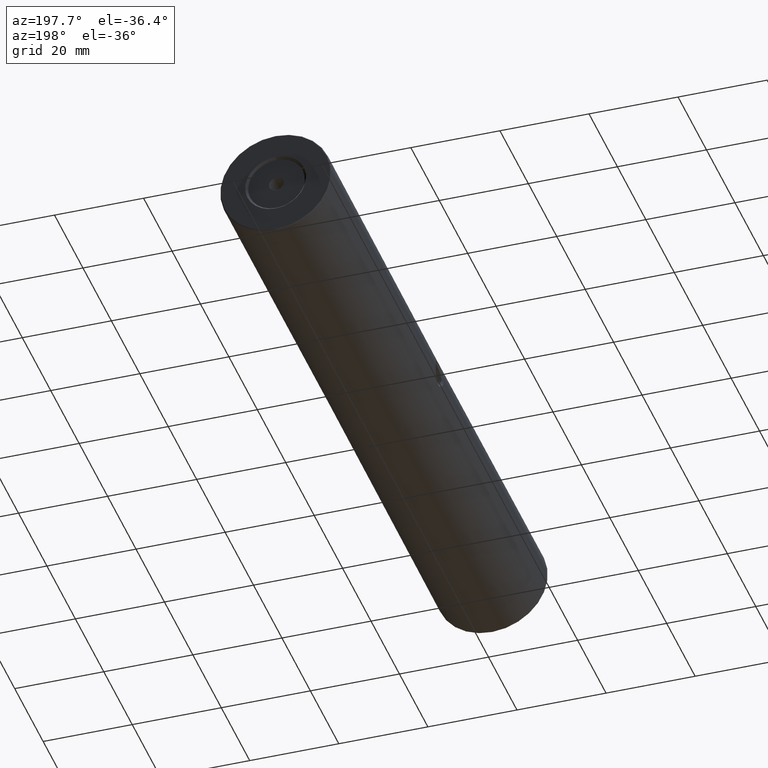
[diagram: clean part render]
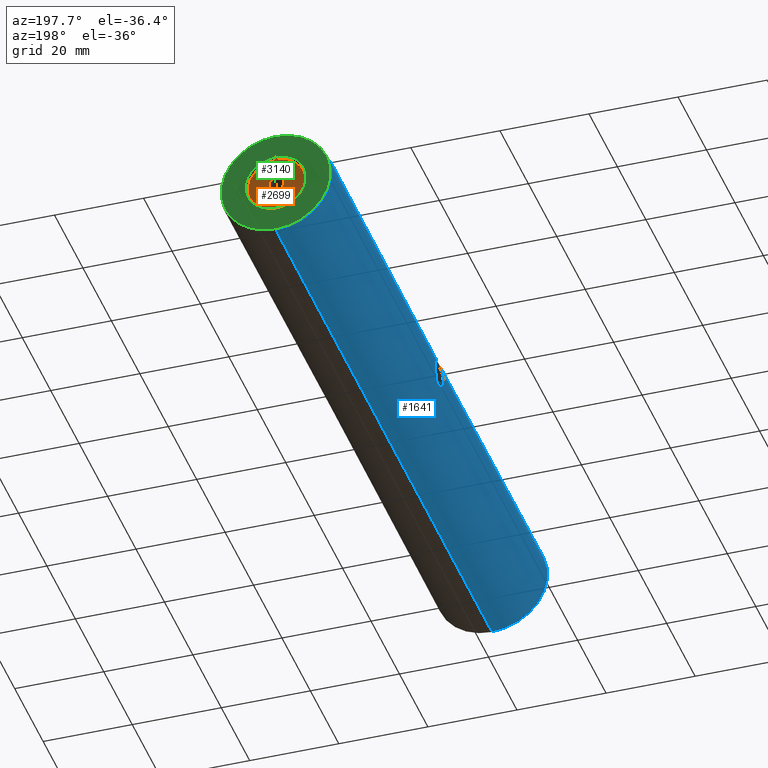
[diagram: same view with three faces highlighted in distinct colors, each labeled with its STEP entity id]
A machine part, auxiliary view with three faces highlighted in distinct colors.
Their STEP definitions:

[orange] entity #2699 — the highlighted planar face has unit normal (0, 1, 0).
#4 = FACE_OUTER_BOUND ( 'NONE', #1344, .T. ) ;
#136 = ORIENTED_EDGE ( 'NONE', *, *, #1799, .F. ) ;
#184 = CARTESIAN_POINT ( 'NONE',  ( -22.50520183104453409, 77.09825218476937891, 51.64999999999999858 ) ) ;
#223 = VERTEX_POINT ( 'NONE', #780 ) ;
#292 = CARTESIAN_POINT ( 'NONE',  ( -22.50520183104453409, 77.09825218476937891, 50.00000000000000000 ) ) ;
#367 = DIRECTION ( 'NONE',  ( 0.0000000000000000000, 1.000000000000000000, 0.0000000000000000000 ) ) ;
#416 = DIRECTION ( 'NONE',  ( 0.0000000000000000000, 0.0000000000000000000, 1.000000000000000000 ) ) ;
#460 = PLANE ( 'NONE',  #1786 ) ;
#652 = EDGE_LOOP ( 'NONE', ( #1875, #136 ) ) ;
#655 = EDGE_CURVE ( 'NONE', #2323, #3104, #1113, .T. ) ;
#754 = DIRECTION ( 'NONE',  ( 0.0000000000000000000, 1.000000000000000000, 0.0000000000000000000 ) ) ;
#780 = CARTESIAN_POINT ( 'NONE',  ( -22.50520183104453409, 77.09825218476937891, 43.64999999999999858 ) ) ;
#938 = ORIENTED_EDGE ( 'NONE', *, *, #1645, .T. ) ;
#1004 = CIRCLE ( 'NONE', #3406, 1.649999999999998579 ) ;
#1113 = CIRCLE ( 'NONE', #3290, 1.649999999999998579 ) ;
#1344 = EDGE_LOOP ( 'NONE', ( #2871, #938 ) ) ;
#1353 = CARTESIAN_POINT ( 'NONE',  ( -22.50520183104453409, 77.09825218476937891, 50.00000000000000000 ) ) ;
#1443 = DIRECTION ( 'NONE',  ( 0.0000000000000000000, 1.000000000000000000, 0.0000000000000000000 ) ) ;
#1510 = AXIS2_PLACEMENT_3D ( 'NONE', #1353, #1588, #3193 ) ;
#1588 = DIRECTION ( 'NONE',  ( 0.0000000000000000000, 1.000000000000000000, 0.0000000000000000000 ) ) ;
#1645 = EDGE_CURVE ( 'NONE', #223, #2617, #1937, .T. ) ;
#1705 = CARTESIAN_POINT ( 'NONE',  ( -22.50520183104453409, 77.09825218476937891, 50.00000000000000000 ) ) ;
#1760 = CARTESIAN_POINT ( 'NONE',  ( -22.50520183104453409, 77.09825218476937891, 50.00000000000000000 ) ) ;
#1786 = AXIS2_PLACEMENT_3D ( 'NONE', #1836, #754, #2923 ) ;
#1799 = EDGE_CURVE ( 'NONE', #3104, #2323, #1004, .T. ) ;
#1836 = CARTESIAN_POINT ( 'NONE',  ( -22.50520183104453409, 77.09825218476937891, 50.00000000000000000 ) ) ;
#1875 = ORIENTED_EDGE ( 'NONE', *, *, #655, .F. ) ;
#1937 = CIRCLE ( 'NONE', #1946, 6.350000000000001421 ) ;
#1946 = AXIS2_PLACEMENT_3D ( 'NONE', #292, #1443, #2787 ) ;
#1967 = DIRECTION ( 'NONE',  ( 0.0000000000000000000, 1.000000000000000000, 0.0000000000000000000 ) ) ;
#2086 = CARTESIAN_POINT ( 'NONE',  ( -22.50520183104453409, 77.09825218476937891, 56.35000000000000142 ) ) ;
#2227 = CIRCLE ( 'NONE', #1510, 6.350000000000001421 ) ;
#2305 = DIRECTION ( 'NONE',  ( 0.0000000000000000000, 0.0000000000000000000, 1.000000000000000000 ) ) ;
#2323 = VERTEX_POINT ( 'NONE', #184 ) ;
#2386 = CARTESIAN_POINT ( 'NONE',  ( -22.50520183104453409, 77.09825218476937891, 48.35000000000000142 ) ) ;
#2518 = EDGE_CURVE ( 'NONE', #2617, #223, #2227, .T. ) ;
#2617 = VERTEX_POINT ( 'NONE', #2086 ) ;
#2699 = ADVANCED_FACE ( 'NONE', ( #2859, #4 ), #460, .T. ) ;
#2787 = DIRECTION ( 'NONE',  ( 0.0000000000000000000, 0.0000000000000000000, 1.000000000000000000 ) ) ;
#2859 = FACE_BOUND ( 'NONE', #652, .T. ) ;
#2871 = ORIENTED_EDGE ( 'NONE', *, *, #2518, .T. ) ;
#2923 = DIRECTION ( 'NONE',  ( 0.0000000000000000000, -0.0000000000000000000, 1.000000000000000000 ) ) ;
#3104 = VERTEX_POINT ( 'NONE', #2386 ) ;
#3193 = DIRECTION ( 'NONE',  ( 0.0000000000000000000, 0.0000000000000000000, 1.000000000000000000 ) ) ;
#3290 = AXIS2_PLACEMENT_3D ( 'NONE', #1705, #1967, #416 ) ;
#3406 = AXIS2_PLACEMENT_3D ( 'NONE', #1760, #367, #2305 ) ;

[blue] entity #1641 — the highlighted cylindrical surface (partial cylindrical patch) has radius 12.5 mm, axis along (-0, -1, -0).
#44 = EDGE_CURVE ( 'NONE', #1761, #3143, #614, .T. ) ;
#85 = CARTESIAN_POINT ( 'NONE',  ( -22.50520183104453409, -74.55174781523061256, 62.50000000000000000 ) ) ;
#97 = CARTESIAN_POINT ( 'NONE',  ( -34.98808031034839416, -1.341176413164854031, 50.66066995131222228 ) ) ;
#159 = CARTESIAN_POINT ( 'NONE',  ( -34.72889004346957620, 0.1521183056254577226, 47.38523661628924799 ) ) ;
#177 = CARTESIAN_POINT ( 'NONE',  ( -34.66752058121687696, 1.766213776329817575, 52.88584409472473880 ) ) ;
#189 = VERTEX_POINT ( 'NONE', #2931 ) ;
#234 = DIRECTION ( 'NONE',  ( -0.0000000000000000000, -1.000000000000000000, -0.0000000000000000000 ) ) ;
#321 = CYLINDRICAL_SURFACE ( 'NONE', #3452, 12.49999999999999645 ) ;
#371 = AXIS2_PLACEMENT_3D ( 'NONE', #2384, #234, #1306 ) ;
#393 = CARTESIAN_POINT ( 'NONE',  ( -34.74847621066871284, 2.810539836582059525, 47.47735429480086111 ) ) ;
#406 = EDGE_CURVE ( 'NONE', #189, #794, #726, .T. ) ;
#434 = CARTESIAN_POINT ( 'NONE',  ( -34.67081540850627874, 1.856390161518441939, 52.87196965016499917 ) ) ;
#435 = CARTESIAN_POINT ( 'NONE',  ( -34.66651604186940006, 1.768063399945826397, 47.10968654203514916 ) ) ;
#450 = AXIS2_PLACEMENT_3D ( 'NONE', #875, #3012, #860 ) ;
#454 = CARTESIAN_POINT ( 'NONE',  ( -34.91000489704502741, 3.784083020754036575, 51.54180631073815277 ) ) ;
#472 = CARTESIAN_POINT ( 'NONE',  ( -34.66652474597411526, 1.028189448993798827, 52.89027716195607809 ) ) ;
#614 = B_SPLINE_CURVE_WITH_KNOTS ( 'NONE', 3,
 ( #733, #958, #3370, #2311, #2852, #1012, #454, #1507, #2027, #750, #2572, #3091, #1766, #1802, #976, #434, #177, #1524, #2590, #1266, #472, #2607, #1281, #2346, #3405, #2080, #1468, #2738, #2213, #1160, #3052, #2460, #1128, #3276, #97, #1144, #3335, #1726 ),
 .UNSPECIFIED., .F., .F.,
 ( 4, 2, 2, 2, 2, 2, 2, 2, 2, 2, 2, 2, 2, 2, 2, 2, 2, 2, 4 ),
 ( 0.5000000000000000000, 0.5624999999999977796, 0.5781249999999974465, 0.5937499999999971134, 0.6249999999999973355, 0.6562499999999976685, 0.6874999999999980016, 0.7187499999999983347, 0.7343749999999984457, 0.7499999999999986677, 0.7812499999999988898, 0.8124999999999991118, 0.8437499999999993339, 0.8749999999999996669, 0.9062500000000000000, 0.9375000000000002220, 0.9531249999999997780, 0.9687499999999995559, 1.000000000000000000 ),
 .UNSPECIFIED. ) ;
#635 = CARTESIAN_POINT ( 'NONE',  ( -34.98371482565009671, 4.119216514467695767, 49.24348063906649031 ) ) ;
#656 = CARTESIAN_POINT ( 'NONE',  ( -34.81216474023065643, -0.4587072315104847031, 47.80748851897893559 ) ) ;
#678 = CARTESIAN_POINT ( 'NONE',  ( -35.00520147448046515, 4.209585013874988846, 50.00298564924415956 ) ) ;
#695 = CARTESIAN_POINT ( 'NONE',  ( -34.74815230533062760, -0.01157353960111017280, 47.47574332331905822 ) ) ;
#712 = VERTEX_POINT ( 'NONE', #1489 ) ;
#726 = CIRCLE ( 'NONE', #450, 12.49999999999999645 ) ;
#732 = EDGE_CURVE ( 'NONE', #3143, #1761, #1030, .T. ) ;
#733 = CARTESIAN_POINT ( 'NONE',  ( -35.00520147448046515, 4.209585013874988846, 50.00298564924415956 ) ) ;
#750 = CARTESIAN_POINT ( 'NONE',  ( -34.81205133254193385, 3.254567286170596763, 52.19320050888281770 ) ) ;
#794 = VERTEX_POINT ( 'NONE', #85 ) ;
#860 = DIRECTION ( 'NONE',  ( 0.0000000000000000000, 0.0000000000000000000, 1.000000000000000000 ) ) ;
#875 = CARTESIAN_POINT ( 'NONE',  ( -22.50520183104453409, -74.55174781523061256, 50.00000000000000000 ) ) ;
#898 = CARTESIAN_POINT ( 'NONE',  ( -34.87974277251103672, 3.646729404079716019, 48.21237859076774157 ) ) ;
#919 = CARTESIAN_POINT ( 'NONE',  ( -34.81219287684744756, 3.255432286787748986, 47.80758469896298379 ) ) ;
#958 = CARTESIAN_POINT ( 'NONE',  ( -35.00511057740322940, 4.209214405500884659, 50.38354389311076176 ) ) ;
#976 = CARTESIAN_POINT ( 'NONE',  ( -34.68386991630579530, 2.126930833239301322, 52.81629139461828970 ) ) ;
#1012 = CARTESIAN_POINT ( 'NONE',  ( -34.92002400583781707, 3.832124608341702210, 51.45923812917446583 ) ) ;
#1028 = EDGE_CURVE ( 'NONE', #712, #794, #1561, .T. ) ;
#1030 = B_SPLINE_CURVE_WITH_KNOTS ( 'NONE', 3,
 ( #1987, #3053, #3092, #2554, #1767, #2294, #2772, #656, #1728, #695, #159, #2833, #2028, #1448, #1186, #2794, #435, #1162, #3295, #3316, #393, #2232, #919, #898, #3074, #3034, #635, #2511, #1469, #678 ),
 .UNSPECIFIED., .F., .F.,
 ( 4, 2, 2, 2, 2, 2, 2, 2, 2, 2, 2, 2, 2, 2, 4 ),
 ( 0.0000000000000000000, 0.06249999999999991673, 0.09374999999999981959, 0.1249999999999997086, 0.1562499999999996114, 0.1874999999999995004, 0.2187499999999993894, 0.2499999999999992506, 0.2812499999999991118, 0.3124999999999990563, 0.3437499999999989453, 0.3749999999999988343, 0.4374999999999994449, 0.4687499999999997224, 0.5000000000000000000 ),
 .UNSPECIFIED. ) ;
#1040 = ORIENTED_EDGE ( 'NONE', *, *, #2805, .T. ) ;
#1051 = CARTESIAN_POINT ( 'NONE',  ( -22.50520183104453409, 77.59825218476937891, 62.50000000000000000 ) ) ;
#1128 = CARTESIAN_POINT ( 'NONE',  ( -34.97029888078463955, -1.264562310703709835, 50.93798354384916394 ) ) ;
#1144 = CARTESIAN_POINT ( 'NONE',  ( -35.00080834475433988, -1.395005945047980145, 50.38049639823343284 ) ) ;
#1160 = CARTESIAN_POINT ( 'NONE',  ( -34.92091958336120427, -1.041568019864894445, 51.45788940182449522 ) ) ;
#1162 = CARTESIAN_POINT ( 'NONE',  ( -34.68404829436484249, 2.129844607503969200, 47.18447624009774444 ) ) ;
#1186 = CARTESIAN_POINT ( 'NONE',  ( -34.66193446152057334, 1.214990703615520973, 47.09073003121876866 ) ) ;
#1266 = CARTESIAN_POINT ( 'NONE',  ( -34.66195746431354507, 1.211812476573435715, 52.90917384922281030 ) ) ;
#1281 = CARTESIAN_POINT ( 'NONE',  ( -34.69719134326830101, 0.4871785544746704555, 52.75879586369703134 ) ) ;
#1287 = EDGE_CURVE ( 'NONE', #712, #1295, #1506, .T. ) ;
#1295 = VERTEX_POINT ( 'NONE', #2706 ) ;
#1306 = DIRECTION ( 'NONE',  ( 0.0000000000000000000, 0.0000000000000000000, 1.000000000000000000 ) ) ;
#1448 = CARTESIAN_POINT ( 'NONE',  ( -34.66645419303031161, 1.029721679340446894, 47.10942330579267434 ) ) ;
#1452 = VECTOR ( 'NONE', #2664, 1000.000000000000000 ) ;
#1468 = CARTESIAN_POINT ( 'NONE',  ( -34.81267991287084840, -0.4618486554977868086, 52.18960616404260122 ) ) ;
#1469 = CARTESIAN_POINT ( 'NONE',  ( -35.00524692301908658, 4.209770318062036054, 49.81270652731087267 ) ) ;
#1489 = CARTESIAN_POINT ( 'NONE',  ( -22.50520183104453409, 77.34825218476937891, 62.50000000000000000 ) ) ;
#1506 = CIRCLE ( 'NONE', #371, 12.49999999999999645 ) ;
#1507 = CARTESIAN_POINT ( 'NONE',  ( -34.87912024511822295, 3.630988285928343107, 51.77802314557394681 ) ) ;
#1524 = CARTESIAN_POINT ( 'NONE',  ( -34.66304078550320611, 1.581811714280294767, 52.90465927043069172 ) ) ;
#1561 = LINE ( 'NONE', #1051, #1452 ) ;
#1592 = LINE ( 'NONE', #2628, #3123 ) ;
#1641 = ADVANCED_FACE ( 'NONE', ( #1652, #2144 ), #321, .T. ) ;
#1652 = FACE_OUTER_BOUND ( 'NONE', #2389, .T. ) ;
#1726 = CARTESIAN_POINT ( 'NONE',  ( -35.00520183104453764, -1.413082124769271530, 50.00000000000000000 ) ) ;
#1728 = CARTESIAN_POINT ( 'NONE',  ( -34.79001590680041289, -0.3182597613147392646, 47.68806332056860242 ) ) ;
#1761 = VERTEX_POINT ( 'NONE', #2022 ) ;
#1766 = CARTESIAN_POINT ( 'NONE',  ( -34.72905683929546683, 2.646135917268398696, 52.61400507397642201 ) ) ;
#1767 = CARTESIAN_POINT ( 'NONE',  ( -34.92056304548296453, -1.039858968404231865, 48.53915210866000507 ) ) ;
#1802 = CARTESIAN_POINT ( 'NONE',  ( -34.69672515563068060, 2.303875218729430241, 52.76087174921038780 ) ) ;
#1839 = CARTESIAN_POINT ( 'NONE',  ( -35.00520183104453764, -1.413082124769271530, 50.00000000000000000 ) ) ;
#1878 = DIRECTION ( 'NONE',  ( -0.0000000000000000000, -1.000000000000000000, -0.0000000000000000000 ) ) ;
#1987 = CARTESIAN_POINT ( 'NONE',  ( -35.00520183104453764, -1.413082124769271530, 50.00000000000000000 ) ) ;
#2022 = CARTESIAN_POINT ( 'NONE',  ( -35.00520147448046515, 4.209585013874988846, 50.00298564924415956 ) ) ;
#2027 = CARTESIAN_POINT ( 'NONE',  ( -34.85705643049905689, 3.515358686858431891, 51.92363226179138280 ) ) ;
#2028 = CARTESIAN_POINT ( 'NONE',  ( -34.68408990658787872, 0.6657967389231507216, 47.18465315096210588 ) ) ;
#2045 = ORIENTED_EDGE ( 'NONE', *, *, #1287, .T. ) ;
#2080 = CARTESIAN_POINT ( 'NONE',  ( -34.79013651509778526, -0.3190703823435730446, 52.31129705548452336 ) ) ;
#2123 = EDGE_LOOP ( 'NONE', ( #2293, #3367 ) ) ;
#2144 = FACE_BOUND ( 'NONE', #2123, .T. ) ;
#2213 = CARTESIAN_POINT ( 'NONE',  ( -34.87963477421904912, -0.8371459405088903516, 51.77451349615055420 ) ) ;
#2232 = CARTESIAN_POINT ( 'NONE',  ( -34.78997005406234422, 3.114338606112261765, 47.68786276457184670 ) ) ;
#2293 = ORIENTED_EDGE ( 'NONE', *, *, #732, .T. ) ;
#2294 = CARTESIAN_POINT ( 'NONE',  ( -34.87939741779931779, -0.8359134744098850600, 48.22389352026589648 ) ) ;
#2311 = CARTESIAN_POINT ( 'NONE',  ( -34.94725856888389615, 3.958573559351604043, 51.20539725429102162 ) ) ;
#2334 = DIRECTION ( 'NONE',  ( -0.0000000000000000000, -1.000000000000000000, -0.0000000000000000000 ) ) ;
#2346 = CARTESIAN_POINT ( 'NONE',  ( -34.72924432496379410, 0.1489096346690378381, 52.61311078804214247 ) ) ;
#2384 = CARTESIAN_POINT ( 'NONE',  ( -22.50520183104453409, 77.34825218476937891, 50.00000000000000000 ) ) ;
#2389 = EDGE_LOOP ( 'NONE', ( #3169, #2045, #1040, #3119 ) ) ;
#2460 = CARTESIAN_POINT ( 'NONE',  ( -34.96325857829892669, -1.233718698007581827, 51.02694110184886966 ) ) ;
#2511 = CARTESIAN_POINT ( 'NONE',  ( -35.00086437887826207, 4.191749029155259265, 49.62049296360565620 ) ) ;
#2554 = CARTESIAN_POINT ( 'NONE',  ( -34.93943696048884107, -1.127055212647322779, 48.70724999355456220 ) ) ;
#2572 = CARTESIAN_POINT ( 'NONE',  ( -34.78950233568573225, 3.111229001393462479, 52.31461547249367072 ) ) ;
#2590 = CARTESIAN_POINT ( 'NONE',  ( -34.66191919043988179, 1.488437803987089358, 52.90933378057249570 ) ) ;
#2607 = CARTESIAN_POINT ( 'NONE',  ( -34.68406788087128945, 0.6663276251776538706, 52.81543937148248347 ) ) ;
#2628 = CARTESIAN_POINT ( 'NONE',  ( -22.50520183104453409, 77.59825218476937891, 37.50000000000000711 ) ) ;
#2664 = DIRECTION ( 'NONE',  ( -0.0000000000000000000, -1.000000000000000000, -0.0000000000000000000 ) ) ;
#2706 = CARTESIAN_POINT ( 'NONE',  ( -22.50520183104453409, 77.34825218476937891, 37.50000000000000711 ) ) ;
#2738 = CARTESIAN_POINT ( 'NONE',  ( -34.85728882727386235, -0.7200549649968808197, 51.92206626468248487 ) ) ;
#2772 = CARTESIAN_POINT ( 'NONE',  ( -34.85689439159366287, -0.7179281710998588473, 48.07538743323033970 ) ) ;
#2794 = CARTESIAN_POINT ( 'NONE',  ( -34.66192908598773670, 1.582225631722754766, 47.09070756900332100 ) ) ;
#2805 = EDGE_CURVE ( 'NONE', #1295, #189, #1592, .T. ) ;
#2833 = CARTESIAN_POINT ( 'NONE',  ( -34.69688201949647777, 0.4909844491486808904, 47.23984144479315006 ) ) ;
#2852 = CARTESIAN_POINT ( 'NONE',  ( -34.93867267744608540, 3.919447845702030531, 51.29073167663088384 ) ) ;
#2931 = CARTESIAN_POINT ( 'NONE',  ( -22.50520183104453409, -74.55174781523061256, 37.50000000000000711 ) ) ;
#2948 = DIRECTION ( 'NONE',  ( 0.0000000000000000000, 0.0000000000000000000, -1.000000000000000000 ) ) ;
#3012 = DIRECTION ( 'NONE',  ( 0.0000000000000000000, 1.000000000000000000, 0.0000000000000000000 ) ) ;
#3034 = CARTESIAN_POINT ( 'NONE',  ( -34.97116716007708703, 4.065639543346104112, 49.06127516949059952 ) ) ;
#3052 = CARTESIAN_POINT ( 'NONE',  ( -34.93964974344274310, -1.128013625740017511, 51.29060020601416170 ) ) ;
#3053 = CARTESIAN_POINT ( 'NONE',  ( -35.00520183104453054, -1.413082089048366186, 49.61579498167184710 ) ) ;
#3074 = CARTESIAN_POINT ( 'NONE',  ( -34.92365520086107011, 3.852890852512064424, 48.53098690614426403 ) ) ;
#3091 = CARTESIAN_POINT ( 'NONE',  ( -34.74801352654728248, 2.806830232060824937, 52.52488523745061144 ) ) ;
#3092 = CARTESIAN_POINT ( 'NONE',  ( -34.98691299260827492, -1.339639162813645701, 49.23677669507347332 ) ) ;
#3119 = ORIENTED_EDGE ( 'NONE', *, *, #406, .T. ) ;
#3123 = VECTOR ( 'NONE', #2334, 1000.000000000000000 ) ;
#3143 = VERTEX_POINT ( 'NONE', #1839 ) ;
#3169 = ORIENTED_EDGE ( 'NONE', *, *, #1028, .F. ) ;
#3207 = CARTESIAN_POINT ( 'NONE',  ( -22.50520183104453409, 77.59825218476937891, 50.00000000000000000 ) ) ;
#3276 = CARTESIAN_POINT ( 'NONE',  ( -34.98275065808669382, -1.318488312173015986, 50.75447521944087015 ) ) ;
#3295 = CARTESIAN_POINT ( 'NONE',  ( -34.69691194385949018, 2.305978899467889587, 47.23996501529249059 ) ) ;
#3316 = CARTESIAN_POINT ( 'NONE',  ( -34.72905173132533463, 2.645954824989596332, 47.38598351054758950 ) ) ;
#3335 = CARTESIAN_POINT ( 'NONE',  ( -35.00520183104454475, -1.413082142476739467, 50.19045706922830163 ) ) ;
#3367 = ORIENTED_EDGE ( 'NONE', *, *, #44, .T. ) ;
#3370 = CARTESIAN_POINT ( 'NONE',  ( -34.98663707282266699, 4.134943201753541686, 50.76675213567406075 ) ) ;
#3405 = CARTESIAN_POINT ( 'NONE',  ( -34.74827243125633913, -0.01252608448357666986, 52.52367520659363720 ) ) ;
#3452 = AXIS2_PLACEMENT_3D ( 'NONE', #3207, #1878, #2948 ) ;

[green] entity #3140 — the highlighted planar face has unit normal (0, 1, 0).
#7 = CARTESIAN_POINT ( 'NONE',  ( -22.50520183104453409, 77.59825218476937891, 50.00000000000000000 ) ) ;
#10 = ORIENTED_EDGE ( 'NONE', *, *, #2012, .T. ) ;
#46 = EDGE_CURVE ( 'NONE', #1782, #2828, #2068, .T. ) ;
#155 = ORIENTED_EDGE ( 'NONE', *, *, #474, .T. ) ;
#448 = ORIENTED_EDGE ( 'NONE', *, *, #1129, .T. ) ;
#474 = EDGE_CURVE ( 'NONE', #2848, #2406, #1350, .T. ) ;
#503 = AXIS2_PLACEMENT_3D ( 'NONE', #1087, #738, #2400 ) ;
#612 = DIRECTION ( 'NONE',  ( 0.0000000000000000000, 0.0000000000000000000, 1.000000000000000000 ) ) ;
#738 = DIRECTION ( 'NONE',  ( 0.0000000000000000000, 1.000000000000000000, 0.0000000000000000000 ) ) ;
#791 = FACE_OUTER_BOUND ( 'NONE', #2106, .T. ) ;
#880 = AXIS2_PLACEMENT_3D ( 'NONE', #7, #1579, #2910 ) ;
#1007 = AXIS2_PLACEMENT_3D ( 'NONE', #1924, #2995, #612 ) ;
#1087 = CARTESIAN_POINT ( 'NONE',  ( -22.50520183104453409, 77.59825218476937891, 50.00000000000000000 ) ) ;
#1129 = EDGE_CURVE ( 'NONE', #2828, #1782, #1731, .T. ) ;
#1154 = DIRECTION ( 'NONE',  ( 0.0000000000000000000, 0.0000000000000000000, 1.000000000000000000 ) ) ;
#1183 = EDGE_LOOP ( 'NONE', ( #10, #155 ) ) ;
#1218 = DIRECTION ( 'NONE',  ( -0.0000000000000000000, -1.000000000000000000, -0.0000000000000000000 ) ) ;
#1338 = CARTESIAN_POINT ( 'NONE',  ( -22.50520183104453409, 77.59825218476937891, 37.75000000000000711 ) ) ;
#1350 = CIRCLE ( 'NONE', #1007, 6.850000000000022737 ) ;
#1579 = DIRECTION ( 'NONE',  ( 0.0000000000000000000, 1.000000000000000000, 0.0000000000000000000 ) ) ;
#1686 = CARTESIAN_POINT ( 'NONE',  ( -22.50520183104453409, 77.59825218476937891, 50.00000000000000000 ) ) ;
#1731 = CIRCLE ( 'NONE', #503, 12.24999999999999645 ) ;
#1782 = VERTEX_POINT ( 'NONE', #1961 ) ;
#1924 = CARTESIAN_POINT ( 'NONE',  ( -22.50520183104453409, 77.59825218476937891, 50.00000000000000000 ) ) ;
#1961 = CARTESIAN_POINT ( 'NONE',  ( -22.50520183104453409, 77.59825218476937891, 62.25000000000000000 ) ) ;
#2012 = EDGE_CURVE ( 'NONE', #2406, #2848, #3231, .T. ) ;
#2068 = CIRCLE ( 'NONE', #2853, 12.24999999999999645 ) ;
#2089 = PLANE ( 'NONE',  #880 ) ;
#2106 = EDGE_LOOP ( 'NONE', ( #2845, #448 ) ) ;
#2369 = FACE_BOUND ( 'NONE', #1183, .T. ) ;
#2400 = DIRECTION ( 'NONE',  ( 0.0000000000000000000, 0.0000000000000000000, 1.000000000000000000 ) ) ;
#2406 = VERTEX_POINT ( 'NONE', #2919 ) ;
#2510 = DIRECTION ( 'NONE',  ( 0.0000000000000000000, 1.000000000000000000, 0.0000000000000000000 ) ) ;
#2534 = DIRECTION ( 'NONE',  ( 0.0000000000000000000, 0.0000000000000000000, 1.000000000000000000 ) ) ;
#2561 = CARTESIAN_POINT ( 'NONE',  ( -22.50520183104453409, 77.59825218476937891, 50.00000000000000000 ) ) ;
#2828 = VERTEX_POINT ( 'NONE', #1338 ) ;
#2845 = ORIENTED_EDGE ( 'NONE', *, *, #46, .T. ) ;
#2848 = VERTEX_POINT ( 'NONE', #2907 ) ;
#2850 = AXIS2_PLACEMENT_3D ( 'NONE', #2561, #1218, #1154 ) ;
#2853 = AXIS2_PLACEMENT_3D ( 'NONE', #1686, #2510, #2534 ) ;
#2907 = CARTESIAN_POINT ( 'NONE',  ( -22.50520183104453409, 77.59825218476937891, 43.14999999999997726 ) ) ;
#2910 = DIRECTION ( 'NONE',  ( 0.0000000000000000000, -0.0000000000000000000, 1.000000000000000000 ) ) ;
#2919 = CARTESIAN_POINT ( 'NONE',  ( -22.50520183104453409, 77.59825218476937891, 56.85000000000002274 ) ) ;
#2995 = DIRECTION ( 'NONE',  ( -0.0000000000000000000, -1.000000000000000000, -0.0000000000000000000 ) ) ;
#3140 = ADVANCED_FACE ( 'NONE', ( #791, #2369 ), #2089, .T. ) ;
#3231 = CIRCLE ( 'NONE', #2850, 6.850000000000022737 ) ;